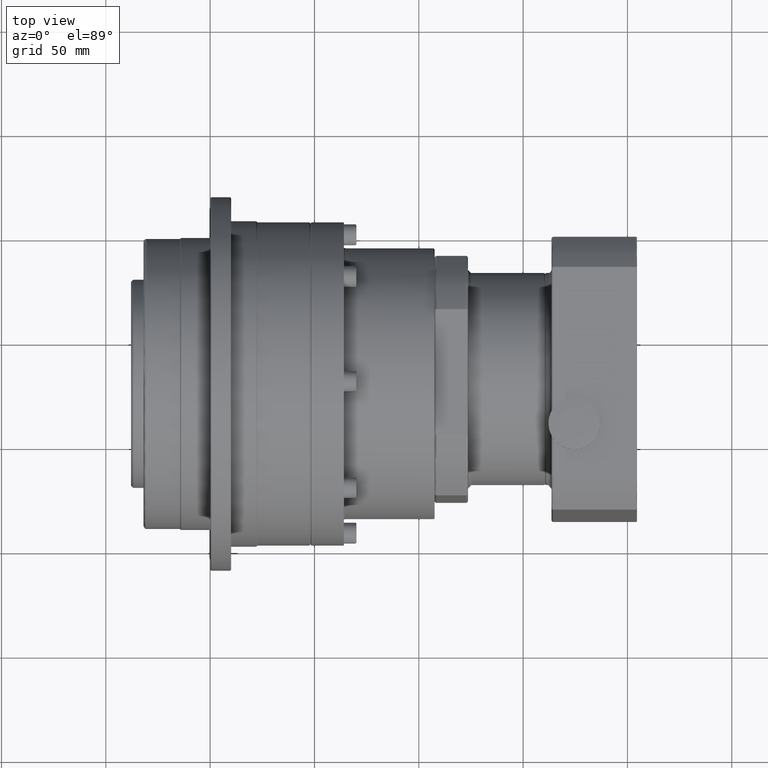
[diagram: clean part render]
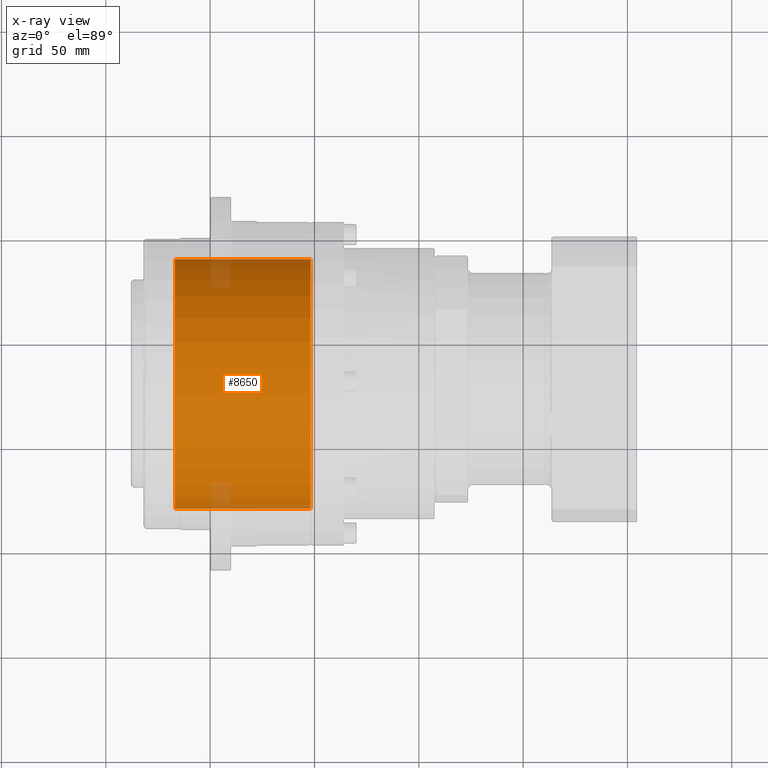
[diagram: x-ray — body ghosted, one internal face saturated and labeled with its STEP entity id]
A machine part, top view, then the same camera in x-ray: the body is ghosted and one INTERNAL B-rep face — a face not visible from any outside direction — is saturated and labeled: STEP entity #8650.
In plain terms, the highlighted cylindrical surface (bore or boss wall) has radius 59.8 mm, axis along (-1, -0, -0).
Its self-contained STEP definition (entity closure, byte-faithful):
#962=FACE_BOUND('',#2458,.T.);
#1541=FACE_OUTER_BOUND('',#2457,.T.);
#2457=EDGE_LOOP('',(#7381));
#2458=EDGE_LOOP('',(#7382));
#2968=CIRCLE('',#9686,59.8);
#2969=CIRCLE('',#9687,59.8);
#4462=VERTEX_POINT('',#15270);
#4463=VERTEX_POINT('',#15272);
#5453=EDGE_CURVE('',#4462,#4462,#2968,.T.);
#5454=EDGE_CURVE('',#4463,#4463,#2969,.T.);
#7381=ORIENTED_EDGE('',*,*,#5453,.T.);
#7382=ORIENTED_EDGE('',*,*,#5454,.F.);
#7675=CYLINDRICAL_SURFACE('',#9685,59.8);
#8650=ADVANCED_FACE('',(#1541,#962),#7675,.F.);
#9685=AXIS2_PLACEMENT_3D('',#15269,#12045,#12046);
#9686=AXIS2_PLACEMENT_3D('',#15271,#12047,#12048);
#9687=AXIS2_PLACEMENT_3D('',#15273,#12049,#12050);
#12045=DIRECTION('center_axis',(-1.,-1.30207664357906E-15,-2.17162238525609E-15));
#12046=DIRECTION('ref_axis',(-2.17162238525609E-15,9.7009709657313E-16,
1.));
#12047=DIRECTION('center_axis',(-1.,-1.30207664357906E-15,-2.17162238525609E-15));
#12048=DIRECTION('ref_axis',(-2.17162238525609E-15,9.7009709657313E-16,
1.));
#12049=DIRECTION('center_axis',(-1.,-1.30207664357906E-15,-2.17162238525609E-15));
#12050=DIRECTION('ref_axis',(-2.17162238525609E-15,9.7009709657313E-16,
1.));
#15269=CARTESIAN_POINT('Origin',(-101.929808100276,-20.2300362469074,-7.61221048782441));
#15270=CARTESIAN_POINT('',(-166.929808100276,-20.2300362469076,-67.4122104878246));
#15271=CARTESIAN_POINT('Origin',(-166.929808100276,-20.2300362469075,-7.61221048782455));
#15272=CARTESIAN_POINT('',(-101.929808100276,-20.2300362469075,-67.4122104878244));
#15273=CARTESIAN_POINT('Origin',(-101.929808100276,-20.2300362469074,-7.61221048782441));